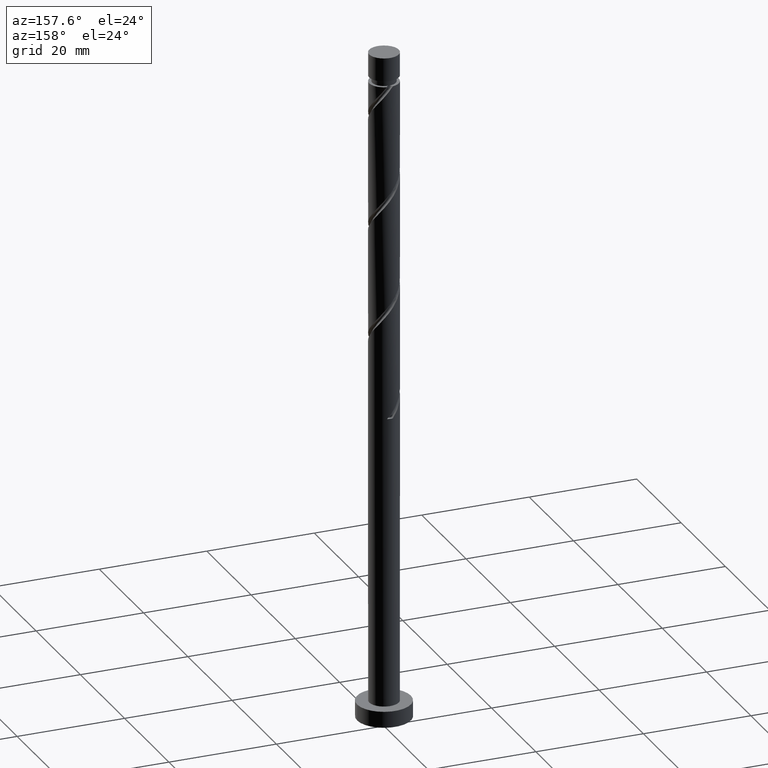
[diagram: clean part render]
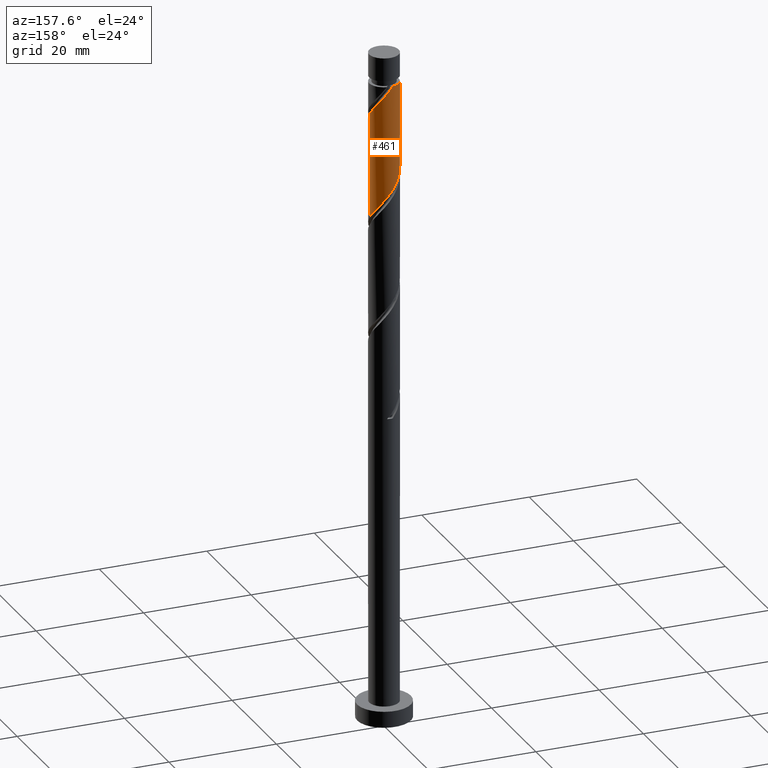
[diagram: same view with one face highlighted and labeled with its STEP entity id]
A machine part, auxiliary view. The second image highlights one B-rep face of the part: STEP entity #461.
In plain terms, the highlighted cylindrical surface (edge-blend (fillet) strip) has radius 2.75 mm, axis along (-0, -0, -1).
Its self-contained STEP definition (entity closure, byte-faithful):
#6 = CARTESIAN_POINT ( 'NONE',  ( -2.694999999999999840, 0.5472430904086424963, 103.9430543868188010 ) ) ;
#18 = CARTESIAN_POINT ( 'NONE',  ( 0.000000000000000000, 0.000000000000000000, 125.0000000000000000 ) ) ;
#57 = CARTESIAN_POINT ( 'NONE',  ( 2.608325209404161793, 0.9740891570832678203, 114.8805543868188010 ) ) ;
#93 = VERTEX_POINT ( 'NONE', #948 ) ;
#108 = CARTESIAN_POINT ( 'NONE',  ( 2.682734662216107679, 0.7450804091537088780, 95.08888772015217228 ) ) ;
#148 = VERTEX_POINT ( 'NONE', #708 ) ;
#165 = DIRECTION ( 'NONE',  ( -1.000000000000000000, 0.000000000000000000, 0.000000000000000000 ) ) ;
#187 = ORIENTED_EDGE ( 'NONE', *, *, #339, .F. ) ;
#191 = EDGE_LOOP ( 'NONE', ( #288, #1375, #187, #342, #670 ) ) ;
#200 = CARTESIAN_POINT ( 'NONE',  ( 1.141352294733360306, 2.501962217801642741, 117.4847210534854867 ) ) ;
#209 = CARTESIAN_POINT ( 'NONE',  ( 2.750000000000000888, 0.2763853991962968437, 114.0292231874230566 ) ) ;
#224 = CARTESIAN_POINT ( 'NONE',  ( 1.353259906971120863, 2.393989896424902675, 97.69305438681881526 ) ) ;
#244 = CARTESIAN_POINT ( 'NONE',  ( 2.321189773387172472, 1.537624180313005740, 96.13055438681881526 ) ) ;
#253 = CARTESIAN_POINT ( 'NONE',  ( -2.608325209404157352, 0.9740891570832675983, 103.4222210534854867 ) ) ;
#266 = DIRECTION ( 'NONE',  ( -1.000000000000000000, 0.000000000000000000, 0.000000000000000000 ) ) ;
#274 = CARTESIAN_POINT ( 'NONE',  ( 0.000000000000000000, 0.000000000000000000, 119.5680543868188010 ) ) ;
#288 = ORIENTED_EDGE ( 'NONE', *, *, #619, .F. ) ;
#304 = CARTESIAN_POINT ( 'NONE',  ( 2.179654583445651106, 1.732430656858974682, 115.9222210534854725 ) ) ;
#314 = CARTESIAN_POINT ( 'NONE',  ( 1.537624180313009292, 2.321189773387174693, 116.9638877201521439 ) ) ;
#339 = EDGE_CURVE ( 'NONE', #148, #1089, #769, .T. ) ;
#342 = ORIENTED_EDGE ( 'NONE', *, *, #657, .F. ) ;
#347 = CARTESIAN_POINT ( 'NONE',  ( 2.750000000000000888, 2.968634351074752664E-15, 94.19119016162238722 ) ) ;
#384 = CARTESIAN_POINT ( 'NONE',  ( -2.750000000000000000, 0.2763853991962854639, 104.2735522528812453 ) ) ;
#406 = EDGE_CURVE ( 'NONE', #1408, #93, #1477, .T. ) ;
#429 = CARTESIAN_POINT ( 'NONE',  ( -2.750000000000000000, 0.000000000000000000, 125.0000000000000000 ) ) ;
#461 = ADVANCED_FACE ( 'NONE', ( #1116 ), #1255, .T. ) ;
#473 = CARTESIAN_POINT ( 'NONE',  ( -1.141352294733357642, 2.501962217801639632, 100.8180543868188010 ) ) ;
#596 = CARTESIAN_POINT ( 'NONE',  ( 2.750000000000000888, 2.968634351074752664E-15, 94.19119016162238722 ) ) ;
#613 = VECTOR ( 'NONE', #1197, 1000.000000000000000 ) ;
#619 = EDGE_CURVE ( 'NONE', #1105, #93, #882, .T. ) ;
#657 = EDGE_CURVE ( 'NONE', #1408, #148, #1173, .T. ) ;
#670 = ORIENTED_EDGE ( 'NONE', *, *, #406, .T. ) ;
#685 = CARTESIAN_POINT ( 'NONE',  ( 0.7450804091537114315, 2.682734662216110788, 118.0055543868188295 ) ) ;
#708 = CARTESIAN_POINT ( 'NONE',  ( -2.750000000000000444, -8.546068586427316511E-16, 104.6078568282890728 ) ) ;
#717 = CARTESIAN_POINT ( 'NONE',  ( 2.026810215123072467, 1.858639381879326535, 96.65138772015214386 ) ) ;
#737 = CARTESIAN_POINT ( 'NONE',  ( -2.750000000000000444, -8.546068586427316511E-16, 104.6078568282890728 ) ) ;
#744 = EDGE_CURVE ( 'NONE', #1105, #1089, #1190, .T. ) ;
#769 =( BOUNDED_CURVE ( )  B_SPLINE_CURVE ( 2, ( #737, #384, #6, #253, #965, #1208, #868, #1442, #473, #1572, #956, #1333, #1347, #1316, #224, #1081, #717, #244, #1465, #108, #1458, #1216, #596 ),
 .UNSPECIFIED., .F., .T. ) 
 B_SPLINE_CURVE_WITH_KNOTS ( ( 3, 2, 2, 2, 2, 2, 2, 2, 2, 2, 2, 3 ),
 ( 0.4295322023138551937, 0.4375000000000000000, 0.4500000000000000111, 0.4625000000000000222, 0.4749999999999999778, 0.4874999999999999889, 0.5000000000000000000, 0.5124999999999999556, 0.5250000000000000222, 0.5374999999999999778, 0.5500000000000000444, 0.5545322023138551382 ),
 .UNSPECIFIED. ) 
 CURVE ( )  GEOMETRIC_REPRESENTATION_ITEM ( )  RATIONAL_B_SPLINE_CURVE ( ( 0.9039174447099340703, 0.9019565955404634794, 0.9090909090909118362, 0.8978984914501279002, 0.9090909090909118362, 0.8978984914501279002, 0.9090909090909118362, 0.8978984914501279002, 0.9090909090909118362, 0.8978984914501279002, 0.9090909090909118362, 0.8978984914501279002, 0.9090909090909118362, 0.8978984914501279002, 0.9090909090909118362, 0.8978984914501279002, 0.9090909090909118362, 0.8978984914501279002, 0.9090909090909118362, 0.8978984914501279002, 0.9090909090909118362, 0.9050328050005762570, 0.9039174447099340703 ) ) 
 REPRESENTATION_ITEM ( '' )  );
#795 = CARTESIAN_POINT ( 'NONE',  ( 0.3123416927098478513, 2.732204726405979223, 118.5263877201521296 ) ) ;
#868 = CARTESIAN_POINT ( 'NONE',  ( -1.858639381879326979, 2.026810215123072023, 101.8597210534854867 ) ) ;
#882 =( BOUNDED_CURVE ( )  B_SPLINE_CURVE ( 2, ( #1149, #209, #938, #57, #1041, #304, #1405, #314, #200, #685, #795, #1520, #1057 ),
 .UNSPECIFIED., .F., .T. ) 
 B_SPLINE_CURVE_WITH_KNOTS ( ( 3, 2, 2, 2, 2, 2, 3 ),
 ( 0.6795322023138555823, 0.6875000000000000000, 0.6999999999999998446, 0.7124999999999999112, 0.7249999999999998668, 0.7374999999999998224, 0.7499999999999997780 ),
 .UNSPECIFIED. ) 
 CURVE ( )  GEOMETRIC_REPRESENTATION_ITEM ( )  RATIONAL_B_SPLINE_CURVE ( ( 0.9039174447099397325, 0.9019565955404695856, 0.9090909090909177204, 0.8978984914501337844, 0.9090909090909177204, 0.8978984914501337844, 0.9090909090909177204, 0.8978984914501337844, 0.9090909090909177204, 0.8978984914501337844, 0.9090909090909177204, 0.8978984914501338954, 0.9090909090909176093 ) ) 
 REPRESENTATION_ITEM ( '' )  );
#911 = DIRECTION ( 'NONE',  ( -0.000000000000000000, -0.000000000000000000, -1.000000000000000000 ) ) ;
#916 = CARTESIAN_POINT ( 'NONE',  ( -2.749999999999998224, 0.000000000000000000, 119.5680543868188010 ) ) ;
#919 = AXIS2_PLACEMENT_3D ( 'NONE', #274, #1247, #165 ) ;
#938 = CARTESIAN_POINT ( 'NONE',  ( 2.695000000000003393, 0.5472430904086420522, 114.3597210534854582 ) ) ;
#948 = CARTESIAN_POINT ( 'NONE',  ( -0.5472430904086116321, 2.695000000000005613, 119.5680543868187158 ) ) ;
#956 = CARTESIAN_POINT ( 'NONE',  ( -0.3123416927098462970, 2.732204726405975670, 99.77638772015214386 ) ) ;
#965 = CARTESIAN_POINT ( 'NONE',  ( -2.393989896424902675, 1.353259906971120419, 102.9013877201521439 ) ) ;
#978 = CARTESIAN_POINT ( 'NONE',  ( 2.750000000000003109, 1.859144745117509121E-15, 113.6949186120152149 ) ) ;
#1041 = CARTESIAN_POINT ( 'NONE',  ( 2.393989896424906672, 1.353259906971121307, 115.4013877201521154 ) ) ;
#1057 = CARTESIAN_POINT ( 'NONE',  ( -0.5472430904086116321, 2.695000000000005613, 119.5680543868187158 ) ) ;
#1081 = CARTESIAN_POINT ( 'NONE',  ( 1.732430656858973794, 2.179654583445646665, 97.17222105348550087 ) ) ;
#1089 = VERTEX_POINT ( 'NONE', #347 ) ;
#1105 = VERTEX_POINT ( 'NONE', #978 ) ;
#1116 = FACE_OUTER_BOUND ( 'NONE', #191, .T. ) ;
#1124 = VECTOR ( 'NONE', #911, 1000.000000000000000 ) ;
#1149 = CARTESIAN_POINT ( 'NONE',  ( 2.750000000000003109, 1.859144745117509121E-15, 113.6949186120152149 ) ) ;
#1172 = AXIS2_PLACEMENT_3D ( 'NONE', #18, #1484, #266 ) ;
#1173 = LINE ( 'NONE', #429, #1124 ) ;
#1190 = LINE ( 'NONE', #1214, #613 ) ;
#1197 = DIRECTION ( 'NONE',  ( -0.000000000000000000, -0.000000000000000000, -1.000000000000000000 ) ) ;
#1208 = CARTESIAN_POINT ( 'NONE',  ( -2.179654583445647109, 1.732430656858973350, 102.3805543868188579 ) ) ;
#1214 = CARTESIAN_POINT ( 'NONE',  ( 2.750000000000000000, 3.367778697655220519E-16, 125.0000000000000000 ) ) ;
#1216 = CARTESIAN_POINT ( 'NONE',  ( 2.750000000000000444, 0.1566777779776910295, 94.38070125082967365 ) ) ;
#1247 = DIRECTION ( 'NONE',  ( -0.000000000000000000, -0.000000000000000000, -1.000000000000000000 ) ) ;
#1255 = CYLINDRICAL_SURFACE ( 'NONE', #1172, 2.750000000000000000 ) ;
#1316 = CARTESIAN_POINT ( 'NONE',  ( 0.9740891570832678203, 2.608325209404156908, 98.21388772015217228 ) ) ;
#1333 = CARTESIAN_POINT ( 'NONE',  ( 0.1203970237340169502, 2.781674790595842772, 99.25555438681881526 ) ) ;
#1347 = CARTESIAN_POINT ( 'NONE',  ( 0.5472430904086429404, 2.694999999999999840, 98.73472105348547245 ) ) ;
#1375 = ORIENTED_EDGE ( 'NONE', *, *, #744, .T. ) ;
#1405 = CARTESIAN_POINT ( 'NONE',  ( 1.858639381879330088, 2.026810215123074244, 116.4430543868187868 ) ) ;
#1408 = VERTEX_POINT ( 'NONE', #916 ) ;
#1442 = CARTESIAN_POINT ( 'NONE',  ( -1.537624180313005962, 2.321189773387172472, 101.3388877201521723 ) ) ;
#1458 = CARTESIAN_POINT ( 'NONE',  ( 2.732204726405975226, 0.3123416927098457418, 94.56805438681880105 ) ) ;
#1465 = CARTESIAN_POINT ( 'NONE',  ( 2.501962217801639632, 1.141352294733356754, 95.60972105348547245 ) ) ;
#1477 = CIRCLE ( 'NONE', #919, 2.749999999999998224 ) ;
#1484 = DIRECTION ( 'NONE',  ( -0.000000000000000000, -0.000000000000000000, -1.000000000000000000 ) ) ;
#1520 = CARTESIAN_POINT ( 'NONE',  ( -0.1203970237340081378, 2.781674790595844993, 119.0472210534854582 ) ) ;
#1572 = CARTESIAN_POINT ( 'NONE',  ( -0.7450804091537093221, 2.682734662216107679, 100.2972210534855009 ) ) ;